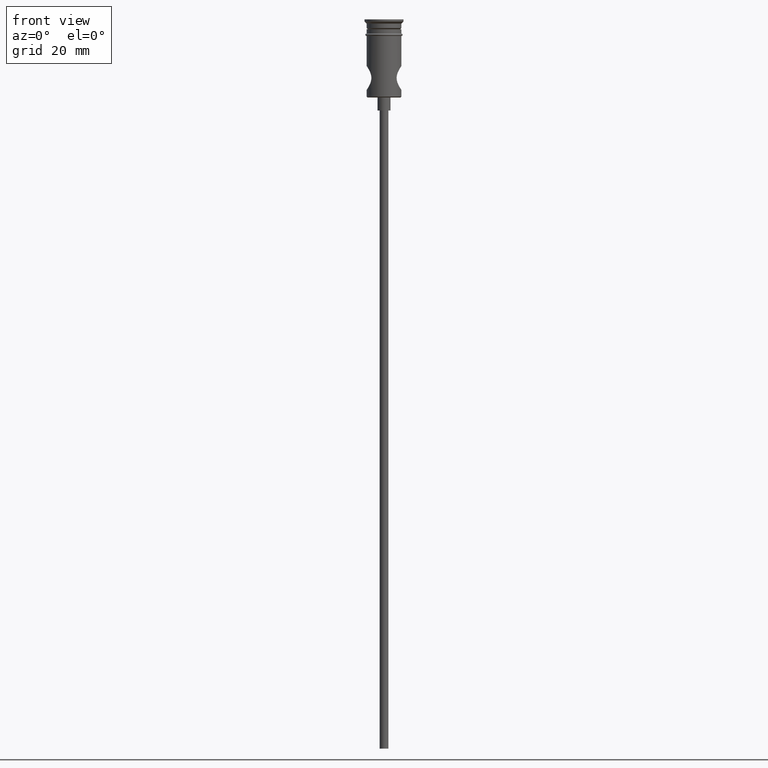
[diagram: clean part render]
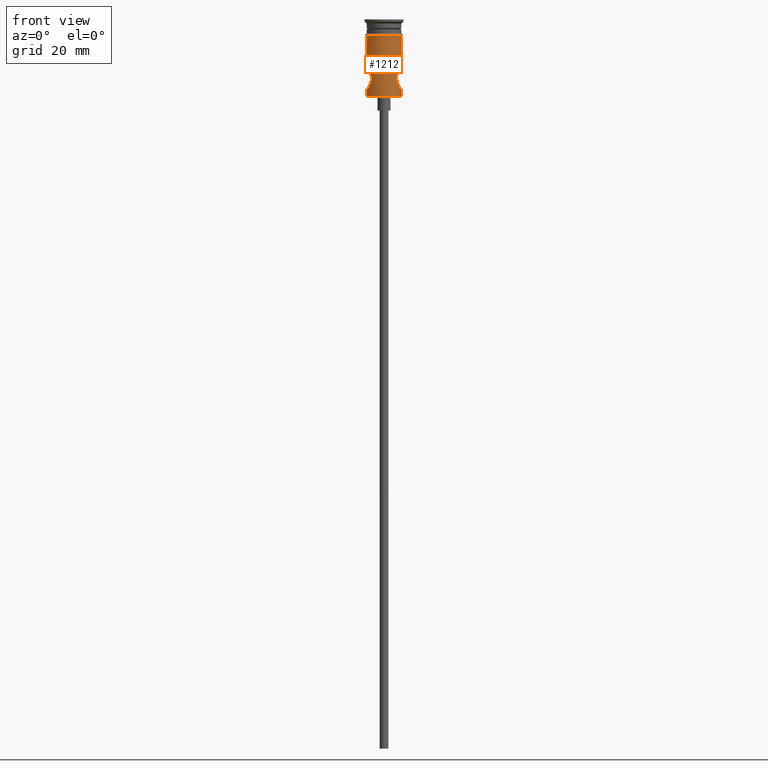
[diagram: same view with one face highlighted and labeled with its STEP entity id]
A machine part, front view. The second image highlights one B-rep face of the part: STEP entity #1212.
In plain terms, the highlighted cylindrical surface (edge-blend (fillet) strip) has radius 4 mm, axis along (-0, -0, 1).
Its self-contained STEP definition (entity closure, byte-faithful):
#17 = LINE ( 'NONE', #482, #665 ) ;
#27 = AXIS2_PLACEMENT_3D ( 'NONE', #35, #152, #348 ) ;
#32 = CARTESIAN_POINT ( 'NONE',  ( 2.991381809801703984, -2.655967432490847546, -14.23628159399357962 ) ) ;
#35 = CARTESIAN_POINT ( 'NONE',  ( 0.000000000000000000, 0.000000000000000000, -17.80000000000001137 ) ) ;
#39 = CARTESIAN_POINT ( 'NONE',  ( 3.356081183987128735, -2.194354300722539897, -15.19340172252557331 ) ) ;
#63 = CARTESIAN_POINT ( 'NONE',  ( -3.153790941630460587, -2.462039204780214874, -14.73790887393710136 ) ) ;
#71 = CARTESIAN_POINT ( 'NONE',  ( -2.991204009610981096, -2.656164689714076044, -14.23545628303815924 ) ) ;
#76 = CARTESIAN_POINT ( 'NONE',  ( -2.922849711538092699, -2.731208254861018148, -13.12921164836393650 ) ) ;
#101 = DIRECTION ( 'NONE',  ( -0.000000000000000000, -0.000000000000000000, 1.000000000000000000 ) ) ;
#126 = CARTESIAN_POINT ( 'NONE',  ( 3.986797965649419240, -0.3731349247757173027, -10.76909995728804681 ) ) ;
#134 = CARTESIAN_POINT ( 'NONE',  ( 3.758308184967917409, -1.412635338666774265, -11.11275848598740801 ) ) ;
#141 = CARTESIAN_POINT ( 'NONE',  ( 3.628318813380886798, -1.691230916824618014, -15.67560887377282519 ) ) ;
#150 = CARTESIAN_POINT ( 'NONE',  ( 3.898650158565305723, -0.9113899793340292099, -10.89906584721212646 ) ) ;
#152 = DIRECTION ( 'NONE',  ( -0.000000000000000000, -0.000000000000000000, 1.000000000000000000 ) ) ;
#156 = CARTESIAN_POINT ( 'NONE',  ( 3.935929372452465103, -0.7361346014914833535, -16.15608523965943277 ) ) ;
#157 = DIRECTION ( 'NONE',  ( 1.000000000000000000, 0.000000000000000000, 0.000000000000000000 ) ) ;
#163 = CARTESIAN_POINT ( 'NONE',  ( -3.936195930800992837, -0.7345946403777908751, -16.15647894591264588 ) ) ;
#175 = CARTESIAN_POINT ( 'NONE',  ( -3.153159797772616901, -2.462863546563664574, -12.26354897380435460 ) ) ;
#180 = CARTESIAN_POINT ( 'NONE',  ( -3.423476604098442788, -2.073510542563412162, -15.31471501676682934 ) ) ;
#188 = EDGE_CURVE ( 'NONE', #1345, #531, #1374, .T. ) ;
#210 = CYLINDRICAL_SURFACE ( 'NONE', #600, 4.000000000000000000 ) ;
#239 = VERTEX_POINT ( 'NONE', #1304 ) ;
#256 = ORIENTED_EDGE ( 'NONE', *, *, #428, .T. ) ;
#260 = CARTESIAN_POINT ( 'NONE',  ( 2.990619957445074029, -2.656825094483681760, -12.76649644725104515 ) ) ;
#268 = CARTESIAN_POINT ( 'NONE',  ( -3.629467468971919075, -1.704948656411081842, -11.31407162498316943 ) ) ;
#272 = DIRECTION ( 'NONE',  ( -0.000000000000000000, -0.000000000000000000, 1.000000000000000000 ) ) ;
#282 = ORIENTED_EDGE ( 'NONE', *, *, #1089, .F. ) ;
#287 = CARTESIAN_POINT ( 'NONE',  ( -3.218452372936937866, -2.378120034323490728, -12.10820183441513365 ) ) ;
#303 = EDGE_LOOP ( 'NONE', ( #490, #256, #891, #915, #1178, #545, #361, #282 ) ) ;
#316 = VERTEX_POINT ( 'NONE', #885 ) ;
#348 = DIRECTION ( 'NONE',  ( -1.000000000000000000, 0.000000000000000000, 0.000000000000000000 ) ) ;
#350 = CARTESIAN_POINT ( 'NONE',  ( 3.935773863085988200, -0.7372053917619743046, -10.84414365491493371 ) ) ;
#361 = ORIENTED_EDGE ( 'NONE', *, *, #1050, .F. ) ;
#378 = CARTESIAN_POINT ( 'NONE',  ( -2.904789332996817297, -2.749945260648944512, -13.68760613050835673 ) ) ;
#383 = B_SPLINE_CURVE_WITH_KNOTS ( 'NONE', 3,
 ( #1165, #827, #717, #163, #710, #595, #1067, #180, #1155, #1267, #63, #1160, #71, #959, #378, #726, #76, #393, #843, #175, #287, #1173, #1382, #268, #1044, #604, #1273, #1052, #1365, #1390 ),
 .UNSPECIFIED., .F., .F.,
 ( 4, 2, 2, 2, 2, 2, 2, 2, 2, 2, 2, 2, 2, 2, 4 ),
 ( 1.048010074117292363E-18, 0.0005572568188834413133, 0.001114513637766881542, 0.002229027275533760049, 0.002786284094417199302, 0.003343540913300638122, 0.003900797732184077375, 0.004458054551067516628, 0.005015311369950955014, 0.005572568188834395135, 0.006129825007717833521, 0.006687081826601272774, 0.007801595464368153883, 0.008358852283251595738, 0.008916109102135036726 ),
 .UNSPECIFIED. ) ;
#393 = CARTESIAN_POINT ( 'NONE',  ( -2.990853264625744412, -2.656566527895887209, -12.76540023414572644 ) ) ;
#428 = EDGE_CURVE ( 'NONE', #1345, #1290, #640, .T. ) ;
#435 = VECTOR ( 'NONE', #976, 1000.000000000000000 ) ;
#442 = CARTESIAN_POINT ( 'NONE',  ( 4.000000000000000000, -2.885398231453893753E-20, -10.75000000000000000 ) ) ;
#451 = CARTESIAN_POINT ( 'NONE',  ( 3.217675228092755635, -2.379195489181981316, -12.10994054056969560 ) ) ;
#465 = LINE ( 'NONE', #916, #481 ) ;
#466 = CARTESIAN_POINT ( 'NONE',  ( 3.986675172797201405, -0.3739722490365800511, -16.23071926583458691 ) ) ;
#471 = CARTESIAN_POINT ( 'NONE',  ( -4.000000000000000000, 4.898587196589412829E-16, -17.80000000000001137 ) ) ;
#473 = CARTESIAN_POINT ( 'NONE',  ( 3.750403272509822639, -1.399798099407463248, -15.87362618509271073 ) ) ;
#481 = VECTOR ( 'NONE', #1243, 1000.000000000000000 ) ;
#482 = CARTESIAN_POINT ( 'NONE',  ( -4.000000000000000000, 4.898587196589412829E-16, 0.000000000000000000 ) ) ;
#490 = ORIENTED_EDGE ( 'NONE', *, *, #188, .F. ) ;
#528 = CARTESIAN_POINT ( 'NONE',  ( 4.000000000000000000, 0.000000000000000000, 0.000000000000000000 ) ) ;
#531 = VERTEX_POINT ( 'NONE', #1126 ) ;
#537 = DIRECTION ( 'NONE',  ( -0.000000000000000000, -0.000000000000000000, 1.000000000000000000 ) ) ;
#545 = ORIENTED_EDGE ( 'NONE', *, *, #590, .F. ) ;
#563 = CARTESIAN_POINT ( 'NONE',  ( 3.999999999999999112, -0.1884943161018475810, -16.25000000000000000 ) ) ;
#565 = CARTESIAN_POINT ( 'NONE',  ( -4.000000000000000000, 4.898587196589412829E-16, -3.799999999999998046 ) ) ;
#573 = CARTESIAN_POINT ( 'NONE',  ( 2.904637655607715807, -2.750105472685720809, -13.31355271269106311 ) ) ;
#582 = CARTESIAN_POINT ( 'NONE',  ( 3.422360837206557704, -2.075363691986896075, -11.68737297714249124 ) ) ;
#590 = EDGE_CURVE ( 'NONE', #664, #239, #1017, .T. ) ;
#595 = CARTESIAN_POINT ( 'NONE',  ( -3.758839784380466842, -1.410695475187754955, -15.88804927343668005 ) ) ;
#600 = AXIS2_PLACEMENT_3D ( 'NONE', #1418, #101, #651 ) ;
#604 = CARTESIAN_POINT ( 'NONE',  ( -3.898469200194268236, -0.9122845588995921462, -10.89933121525977811 ) ) ;
#626 = VERTEX_POINT ( 'NONE', #1338 ) ;
#640 = CIRCLE ( 'NONE', #27, 4.000000000000000000 ) ;
#651 = DIRECTION ( 'NONE',  ( 1.000000000000000000, 0.000000000000000000, 0.000000000000000000 ) ) ;
#664 = VERTEX_POINT ( 'NONE', #565 ) ;
#665 = VECTOR ( 'NONE', #926, 1000.000000000000000 ) ;
#669 = CARTESIAN_POINT ( 'NONE',  ( 3.039104102417667708, -2.602270566844717692, -12.59325405576322510 ) ) ;
#698 = CARTESIAN_POINT ( 'NONE',  ( 2.904838189979199292, -2.749893654545319421, -13.68954574786105383 ) ) ;
#710 = CARTESIAN_POINT ( 'NONE',  ( -3.898332255911910238, -0.9125459904059147753, -16.10045093770546742 ) ) ;
#717 = CARTESIAN_POINT ( 'NONE',  ( -3.986715318769655791, -0.3733211196991539360, -16.23077663263318726 ) ) ;
#726 = CARTESIAN_POINT ( 'NONE',  ( -2.904685908915327630, -2.750054504224673124, -13.31400209527123302 ) ) ;
#736 = CARTESIAN_POINT ( 'NONE',  ( 4.000000000000000000, 0.000000000000000000, -17.80000000000001137 ) ) ;
#782 = CARTESIAN_POINT ( 'NONE',  ( 3.627876891014071070, -1.707999379360746195, -11.31682734715131922 ) ) ;
#806 = CARTESIAN_POINT ( 'NONE',  ( 2.923675419418522381, -2.730320526303180895, -13.87632886117500952 ) ) ;
#827 = CARTESIAN_POINT ( 'NONE',  ( -4.000000000000001776, -0.1887778026635980599, -16.25000000000000355 ) ) ;
#843 = CARTESIAN_POINT ( 'NONE',  ( -3.039098135780837762, -2.602305915985867024, -12.59307557713039216 ) ) ;
#877 = CARTESIAN_POINT ( 'NONE',  ( -4.000000000000000000, 4.898587196589412829E-16, 0.000000000000000000 ) ) ;
#881 = CARTESIAN_POINT ( 'NONE',  ( 0.000000000000000000, 0.000000000000000000, -3.799999999999998046 ) ) ;
#885 = CARTESIAN_POINT ( 'NONE',  ( 4.000000000000000000, 1.082428048190059701E-15, -16.25000000000000000 ) ) ;
#891 = ORIENTED_EDGE ( 'NONE', *, *, #1231, .T. ) ;
#912 = CARTESIAN_POINT ( 'NONE',  ( 3.560899448792282929, -1.827460818524927255, -15.56227107929443143 ) ) ;
#915 = ORIENTED_EDGE ( 'NONE', *, *, #1029, .F. ) ;
#916 = CARTESIAN_POINT ( 'NONE',  ( 4.000000000000000000, 0.000000000000000000, 0.000000000000000000 ) ) ;
#918 = CARTESIAN_POINT ( 'NONE',  ( 3.805236129597703076, -1.244842054105928630, -15.95868906918809493 ) ) ;
#926 = DIRECTION ( 'NONE',  ( -0.000000000000000000, -0.000000000000000000, 1.000000000000000000 ) ) ;
#946 = VECTOR ( 'NONE', #537, 1000.000000000000000 ) ;
#959 = CARTESIAN_POINT ( 'NONE',  ( -2.923708177251532092, -2.730282545867590116, -13.87638281426623799 ) ) ;
#976 = DIRECTION ( 'NONE',  ( -0.000000000000000000, -0.000000000000000000, 1.000000000000000000 ) ) ;
#1006 = CARTESIAN_POINT ( 'NONE',  ( 2.922903409755361892, -2.731146823183896899, -13.12907672655106239 ) ) ;
#1017 = CIRCLE ( 'NONE', #1019, 4.000000000000000000 ) ;
#1019 = AXIS2_PLACEMENT_3D ( 'NONE', #881, #272, #157 ) ;
#1027 = CARTESIAN_POINT ( 'NONE',  ( 3.352704555667196828, -2.184805989472308418, -11.82087544688862124 ) ) ;
#1029 = EDGE_CURVE ( 'NONE', #1187, #316, #1312, .T. ) ;
#1044 = CARTESIAN_POINT ( 'NONE',  ( -3.757420049329555312, -1.415307548900980095, -11.11413128623153490 ) ) ;
#1050 = EDGE_CURVE ( 'NONE', #626, #664, #17, .T. ) ;
#1052 = CARTESIAN_POINT ( 'NONE',  ( -3.986569257409959377, -0.3752541894392961708, -10.76943406977662754 ) ) ;
#1067 = CARTESIAN_POINT ( 'NONE',  ( -3.628548934766043121, -1.706512450506086465, -15.68423018591682805 ) ) ;
#1084 = LINE ( 'NONE', #528, #435 ) ;
#1089 = EDGE_CURVE ( 'NONE', #531, #626, #383, .T. ) ;
#1126 = CARTESIAN_POINT ( 'NONE',  ( -4.000000000000000000, -1.082428048190059701E-15, -16.25000000000000000 ) ) ;
#1135 = CARTESIAN_POINT ( 'NONE',  ( 3.999999999999999112, -0.1858078852913923329, -10.75000000000000178 ) ) ;
#1155 = CARTESIAN_POINT ( 'NONE',  ( -3.352571063512280070, -2.184990303520331079, -15.17882514829168805 ) ) ;
#1160 = CARTESIAN_POINT ( 'NONE',  ( -3.040338712675894062, -2.600841183461505501, -14.41086802801371292 ) ) ;
#1165 = CARTESIAN_POINT ( 'NONE',  ( -4.000000000000000000, -1.082428048190059701E-15, -16.25000000000000000 ) ) ;
#1173 = CARTESIAN_POINT ( 'NONE',  ( -3.352887962353420903, -2.184498314583853240, -11.82055838298663275 ) ) ;
#1178 = ORIENTED_EDGE ( 'NONE', *, *, #1317, .T. ) ;
#1187 = VERTEX_POINT ( 'NONE', #442 ) ;
#1212 = ADVANCED_FACE ( 'NONE', ( #1293 ), #210, .T. ) ;
#1231 = EDGE_CURVE ( 'NONE', #1290, #316, #1084, .T. ) ;
#1234 = CARTESIAN_POINT ( 'NONE',  ( 4.000000000000000000, -2.885398231453893753E-20, -10.75000000000000000 ) ) ;
#1243 = DIRECTION ( 'NONE',  ( -0.000000000000000000, -0.000000000000000000, 1.000000000000000000 ) ) ;
#1245 = CARTESIAN_POINT ( 'NONE',  ( 3.210458317317453236, -2.392695863158818881, -14.90116197658784358 ) ) ;
#1267 = CARTESIAN_POINT ( 'NONE',  ( -3.217982150421164089, -2.378761493287735451, -14.89073011870239327 ) ) ;
#1273 = CARTESIAN_POINT ( 'NONE',  ( -3.935590311853631729, -0.7380237449173248088, -10.84441589138536699 ) ) ;
#1290 = VERTEX_POINT ( 'NONE', #736 ) ;
#1293 = FACE_OUTER_BOUND ( 'NONE', #303, .T. ) ;
#1304 = CARTESIAN_POINT ( 'NONE',  ( 4.000000000000000000, 0.000000000000000000, -3.799999999999998046 ) ) ;
#1312 = B_SPLINE_CURVE_WITH_KNOTS ( 'NONE', 3,
 ( #1234, #1135, #126, #350, #150, #134, #782, #582, #1027, #451, #1341, #669, #260, #1006, #573, #698, #806, #32, #1358, #1245, #39, #912, #141, #473, #918, #1348, #156, #466, #563, #1325 ),
 .UNSPECIFIED., .F., .F.,
 ( 4, 2, 2, 2, 2, 2, 2, 2, 2, 2, 2, 2, 2, 2, 4 ),
 ( 0.008916109102135036726, 0.009472529091595908307, 0.01002894908105677989, 0.01114178905997852131, 0.01169820904943938943, 0.01225462903890025754, 0.01281104902836112565, 0.01336746901782199376, 0.01392388900728286361, 0.01448030899674372998, 0.01559314897566546620, 0.01614956896512633605, 0.01670598895458720243, 0.01726240894404806880, 0.01781882893350893518 ),
 .UNSPECIFIED. ) ;
#1317 = EDGE_CURVE ( 'NONE', #1187, #239, #465, .T. ) ;
#1325 = CARTESIAN_POINT ( 'NONE',  ( 4.000000000000000000, 1.082428048190059701E-15, -16.25000000000000000 ) ) ;
#1338 = CARTESIAN_POINT ( 'NONE',  ( -4.000000000000000000, 4.898875736391346734E-16, -10.75000000000000000 ) ) ;
#1341 = CARTESIAN_POINT ( 'NONE',  ( 3.152150098412337176, -2.464125728423233408, -12.26627202958722052 ) ) ;
#1345 = VERTEX_POINT ( 'NONE', #471 ) ;
#1348 = CARTESIAN_POINT ( 'NONE',  ( 3.897876258935293325, -0.9143382370299266704, -16.09976330978815895 ) ) ;
#1358 = CARTESIAN_POINT ( 'NONE',  ( 3.040558828618885379, -2.600578980709926213, -14.41155145748494881 ) ) ;
#1365 = CARTESIAN_POINT ( 'NONE',  ( -4.000000000000000000, -0.1860873315878985856, -10.74999999999999645 ) ) ;
#1374 = LINE ( 'NONE', #877, #946 ) ;
#1382 = CARTESIAN_POINT ( 'NONE',  ( -3.422612705757198448, -2.075016451433645770, -11.68686323689984974 ) ) ;
#1390 = CARTESIAN_POINT ( 'NONE',  ( -4.000000000000000000, 4.898875736391346734E-16, -10.75000000000000000 ) ) ;
#1418 = CARTESIAN_POINT ( 'NONE',  ( 0.000000000000000000, 0.000000000000000000, 0.000000000000000000 ) ) ;